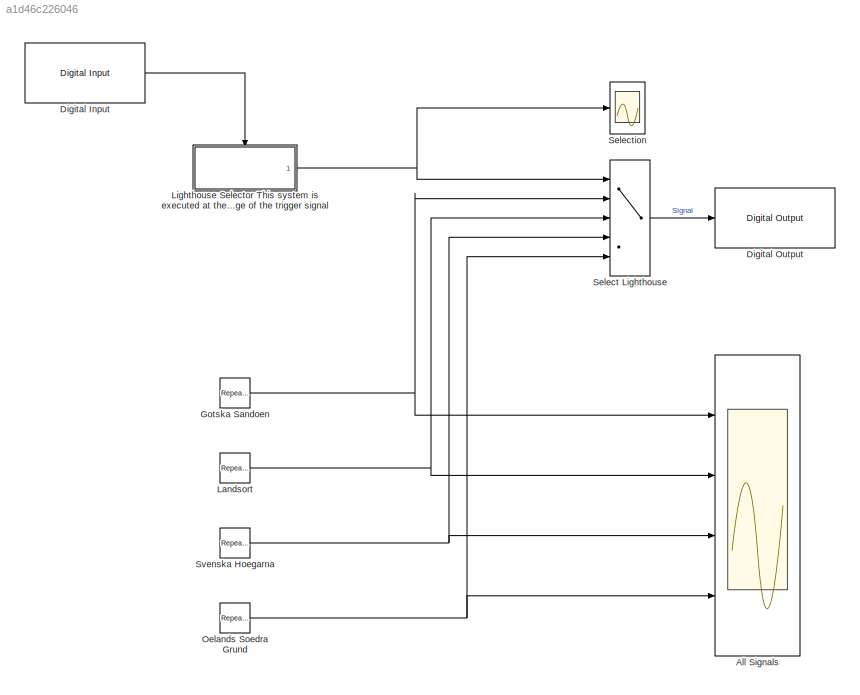
MODEL slx_a1d46c226046
KIND model
CONFIG AbsTol = auto
CONFIG FixedStep = 1
CONFIG MaxStep = auto
CONFIG MinStep = auto
CONFIG RelTol = 1e-3
CONFIG SampleTimeConstraint = Unconstrained
CONFIG Solver = ode1
CONFIG SolverMode = Auto
CONFIG SolverName = ode1
CONFIG StartTime = 0.0
CONFIG StopTime = 900
BLOCK [Scope] All Signals
  NumInputPorts = 4
  Ports = [4]
  ScopeSpecificationString = Simulink.scopes.TimeScopeBlockCfg('CurrentConfiguration', extmgr.ConfigurationSet(extmgr.Configuration('Core','General UI',true),extmgr.Configuration('Core','Source UI',true),extmgr.Configuration('Sources','WiredSimulink',true),extmgr.Configuration('Visuals','Time Domain',true,'SerializedDisplays',{struct('MinYLimReal','-0.125','MaxYLimReal','1.125','YLabelReal','','MinYLimMag','0.00000','MaxYLimM...<+3290ch>
BLOCK [Reference] Digital Input  REF=arduinolib/Digital Input
  Ports = [0, 1]
  SourceBlock = arduinolib/Digital Input
  SourceType = Arduino Digital Input
BLOCK [Reference] Digital Output  REF=arduinolib/Digital Output
  Ports = [1]
  SourceBlock = arduinolib/Digital Output
  SourceType = Arduino Digital Output
BLOCK [Reference] Gotska Sandoen  REF=simulink/Sources/Repeating
Sequence
Stair
  Ports = [0, 1]
  SourceBlock = simulink/Sources/Repeating\nSequence\nStair
  SourceType = Repeating Sequence Stair
BLOCK [Reference] Landsort  REF=simulink/Sources/Repeating
Sequence
Stair
  Ports = [0, 1]
  SourceBlock = simulink/Sources/Repeating\nSequence\nStair
  SourceType = Repeating Sequence Stair
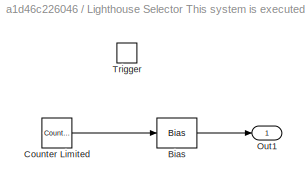
BLOCK [SubSystem] Lighthouse Selector This system is executed at the rising edge of the trigger signal
  Ports = [0, 1, 0, 1]
  RequestExecContextInheritance = off
  TreatAsAtomicUnit = on
  Variant = off
BLOCK [Bias] Lighthouse Selector This system is executed at the rising edge of the trigger signal/Bias
  Bias = 1
  SaturateOnIntegerOverflow = off
BLOCK [Reference] Lighthouse Selector This system is executed at the rising edge of the trigger signal/Counter Limited  REF=simulink/Sources/Counter
Limited
  Ports = [0, 1]
  SourceBlock = simulink/Sources/Counter\nLimited
  SourceType = Counter Limited
BLOCK [Outport] Lighthouse Selector This system is executed at the rising edge of the trigger signal/Out1
  IconDisplay = Port number
BLOCK [TriggerPort] Lighthouse Selector This system is executed at the rising edge of the trigger signal/Trigger
  Ports = []
  StatesWhenEnabling = held
  VariantControl = Variant
BLOCK [Reference] Oelands Soedra Grund  REF=simulink/Sources/Repeating
Sequence
Stair
  Ports = [0, 1]
  SourceBlock = simulink/Sources/Repeating\nSequence\nStair
  SourceType = Repeating Sequence Stair
BLOCK [MultiPortSwitch] Select Lighthouse
  DiagnosticForDefault = None
  InputSameDT = off
  Inputs = 4
  Ports = [5, 1]
  SaturateOnIntegerOverflow = off
BLOCK [Scope] Selection
  Ports = [1]
  ScopeSpecificationString = Simulink.scopes.TimeScopeBlockCfg('CurrentConfiguration', extmgr.ConfigurationSet(extmgr.Configuration('Core','General UI',true),extmgr.Configuration('Core','Source UI',true),extmgr.Configuration('Sources','WiredSimulink',true,'DataLoggingVariableName','ScopeData2'),extmgr.Configuration('Visuals','Time Domain',true,'SerializedDisplays',{struct('MinYLimReal','-0.125','MaxYLimReal','1.125','YLabelRe...<+1431ch>
BLOCK [Reference] Svenska Hoegarna  REF=simulink/Sources/Repeating
Sequence
Stair
  Ports = [0, 1]
  SourceBlock = simulink/Sources/Repeating\nSequence\nStair
  SourceType = Repeating Sequence Stair
LINE Digital Input:1 -> Lighthouse Selector This system is executed at the rising edge of the trigger signal:trigger
NET Gotska Sandoen:1 -> All Signals:1, Select Lighthouse:2
NET Landsort:1 -> All Signals:2, Select Lighthouse:3
LINE Lighthouse Selector This system is executed at the rising edge of the trigger signal/Bias:1 -> Lighthouse Selector This system is executed at the rising edge of the trigger signal/Out1:1
LINE Lighthouse Selector This system is executed at the rising edge of the trigger signal/Counter Limited:1 -> Lighthouse Selector This system is executed at the rising edge of the trigger signal/Bias:1
NET Lighthouse Selector This system is executed at the rising edge of the trigger signal:1 -> Select Lighthouse:1, Selection:1
NET Oelands Soedra Grund:1 -> All Signals:4, Select Lighthouse:5
LINE Select Lighthouse:1 -> Digital Output:1
NET Svenska Hoegarna:1 -> All Signals:3, Select Lighthouse:4
note: NET lines group one-source signal fan-out (src -> all destinations, sorted); 1:1 wires keep LINE
